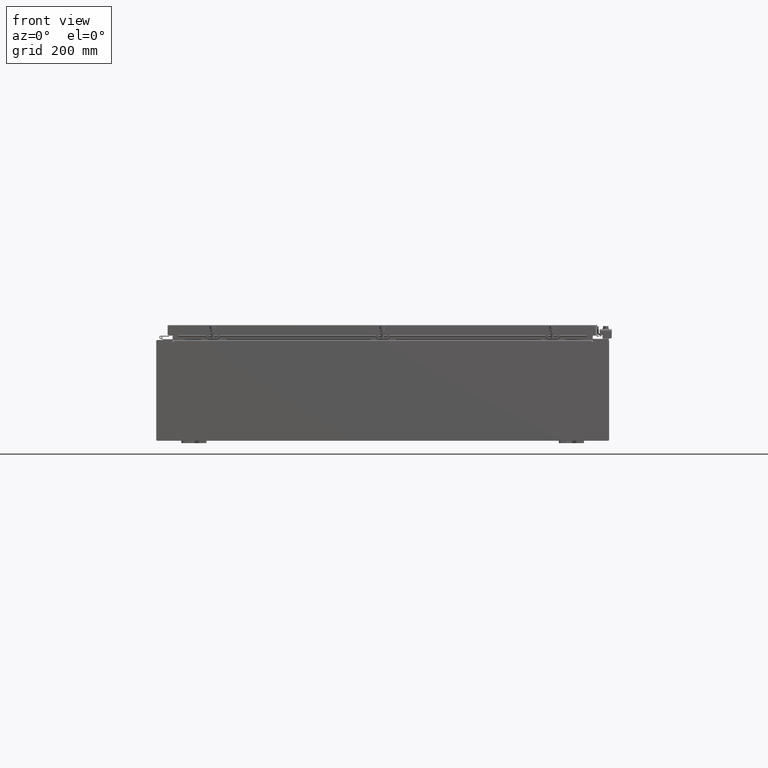
[diagram: clean part render]
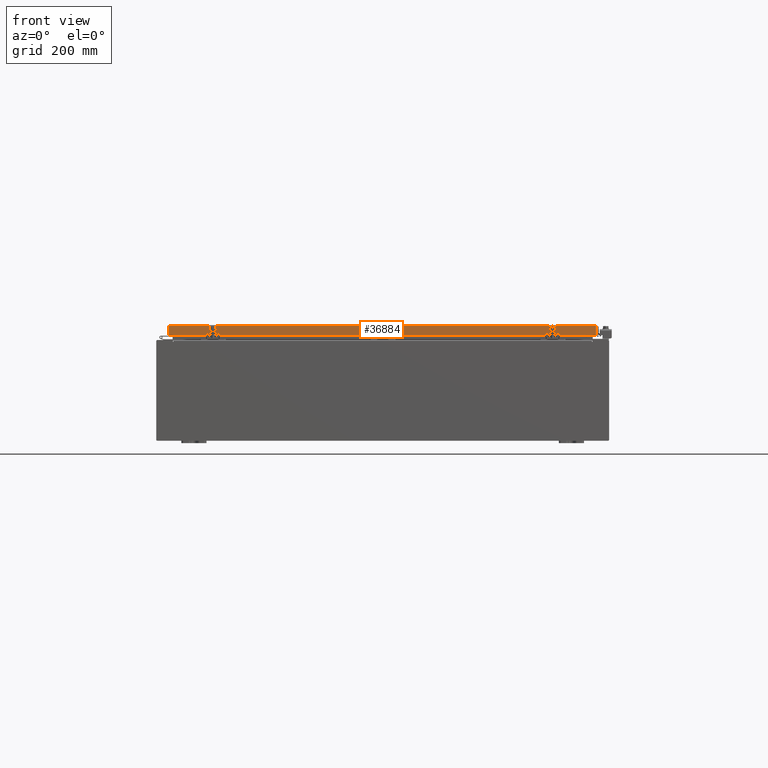
[diagram: same view with one face highlighted and labeled with its STEP entity id]
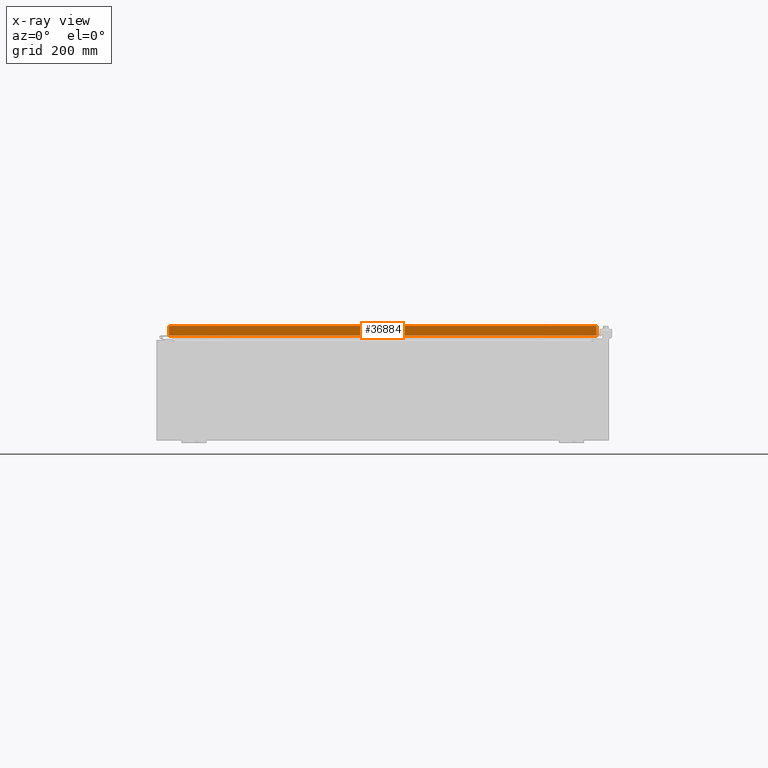
[diagram: x-ray of the same camera — body ghosted, the highlighted face saturated]
A machine part, front view. The second image highlights one B-rep face of the part: STEP entity #36884.
The next image is the same camera in x-ray: the body ghosted, the highlighted face saturated — about 0% of this face is hidden behind the body in this view.
In plain terms, the highlighted planar face has unit normal (-0, 1, -0).
Its self-contained STEP definition (entity closure, byte-faithful):
#122 = DIRECTION ( 'NONE',  ( -1.000000000000000000, -8.758115402030108600E-047, 1.239713195391617400E-016 ) ) ;
#279 = CARTESIAN_POINT ( 'NONE',  ( 17.07799999999999900, -20.09400000000000800, -0.8499999999999996400 ) ) ;
#361 = VECTOR ( 'NONE', #49116, 39.37007874015748100 ) ;
#620 = VECTOR ( 'NONE', #41236, 39.37007874015748100 ) ;
#3665 = DIRECTION ( 'NONE',  ( 1.000000000000000000, 6.989207801985715800E-031, -3.922586267643549700E-045 ) ) ;
#6242 = EDGE_CURVE ( 'NONE', #42329, #7847, #9932, .T. ) ;
#6309 = VECTOR ( 'NONE', #8754, 39.37007874015748100 ) ;
#6394 = ORIENTED_EDGE ( 'NONE', *, *, #31065, .F. ) ;
#6592 = CARTESIAN_POINT ( 'NONE',  ( -16.98915786437626700, -20.09400000000000800, -0.8499999999999954300 ) ) ;
#7375 = ORIENTED_EDGE ( 'NONE', *, *, #7586, .F. ) ;
#7586 = EDGE_CURVE ( 'NONE', #43197, #13793, #21107, .T. ) ;
#7847 = VERTEX_POINT ( 'NONE', #13790 ) ;
#8754 = DIRECTION ( 'NONE',  ( -1.000000000000000000, -8.758115402030108600E-047, 1.239713195391617400E-016 ) ) ;
#9302 = CARTESIAN_POINT ( 'NONE',  ( 16.98915786437626700, -20.09400000000000100, -0.08769999999999549000 ) ) ;
#9932 = LINE ( 'NONE', #24156, #27822 ) ;
#10914 = CARTESIAN_POINT ( 'NONE',  ( -16.98915786437626700, -20.09400000000000100, 1.135460009841472000E-013 ) ) ;
#13790 = CARTESIAN_POINT ( 'NONE',  ( 16.98915786437627100, -20.09400000000000800, -0.8499999999999996400 ) ) ;
#13793 = VERTEX_POINT ( 'NONE', #6592 ) ;
#15596 = ORIENTED_EDGE ( 'NONE', *, *, #6242, .F. ) ;
#16416 = CARTESIAN_POINT ( 'NONE',  ( -16.23915786437626700, -20.09400000000000800, -0.8500000000000016400 ) ) ;
#17517 = EDGE_CURVE ( 'NONE', #20373, #13793, #30821, .T. ) ;
#17932 = DIRECTION ( 'NONE',  ( 0.0000000000000000000, 5.637761885544720300E-015, 1.000000000000000000 ) ) ;
#18583 = FACE_OUTER_BOUND ( 'NONE', #41543, .T. ) ;
#20155 = EDGE_CURVE ( 'NONE', #39330, #43197, #20906, .T. ) ;
#20373 = VERTEX_POINT ( 'NONE', #44174 ) ;
#20906 = LINE ( 'NONE', #41408, #620 ) ;
#21107 = LINE ( 'NONE', #279, #30066 ) ;
#22588 = LINE ( 'NONE', #34224, #41758 ) ;
#24156 = CARTESIAN_POINT ( 'NONE',  ( 16.98915786437627100, -20.09400000000000100, -0.07469999999999958600 ) ) ;
#27762 = CARTESIAN_POINT ( 'NONE',  ( 17.07799999999999900, -20.09400000000000800, -0.8499999999999996400 ) ) ;
#27822 = VECTOR ( 'NONE', #40698, 39.37007874015748100 ) ;
#29262 = CARTESIAN_POINT ( 'NONE',  ( 1.404411415731009600E-029, -20.09400000000000100, 1.135460009841472000E-013 ) ) ;
#29366 = ORIENTED_EDGE ( 'NONE', *, *, #17517, .T. ) ;
#30066 = VECTOR ( 'NONE', #122, 39.37007874015748100 ) ;
#30821 = LINE ( 'NONE', #10914, #361 ) ;
#31065 = EDGE_CURVE ( 'NONE', #20373, #42329, #22588, .T. ) ;
#32992 = CARTESIAN_POINT ( 'NONE',  ( 16.23915786437626400, -20.09400000000000800, -0.8500000000000016400 ) ) ;
#34224 = CARTESIAN_POINT ( 'NONE',  ( 17.07799999999999900, -20.09400000000000100, -0.08769999999999547600 ) ) ;
#36765 = LINE ( 'NONE', #27762, #6309 ) ;
#36884 = ADVANCED_FACE ( 'NONE', ( #18583 ), #36993, .F. ) ;
#36993 = PLANE ( 'NONE',  #42408 ) ;
#39330 = VERTEX_POINT ( 'NONE', #32992 ) ;
#40698 = DIRECTION ( 'NONE',  ( -0.0000000000000000000, -5.637761885544720300E-015, -1.000000000000000000 ) ) ;
#40844 = DIRECTION ( 'NONE',  ( -6.989207801985715000E-031, 1.000000000000000000, -5.637761885544720300E-015 ) ) ;
#41033 = EDGE_CURVE ( 'NONE', #7847, #39330, #36765, .T. ) ;
#41236 = DIRECTION ( 'NONE',  ( -1.000000000000000000, 0.0000000000000000000, 0.0000000000000000000 ) ) ;
#41408 = CARTESIAN_POINT ( 'NONE',  ( 16.23915786437626700, -20.09400000000000800, -0.8500000000000016400 ) ) ;
#41543 = EDGE_LOOP ( 'NONE', ( #6394, #29366, #7375, #47579, #49176, #15596 ) ) ;
#41758 = VECTOR ( 'NONE', #3665, 39.37007874015748100 ) ;
#42329 = VERTEX_POINT ( 'NONE', #9302 ) ;
#42408 = AXIS2_PLACEMENT_3D ( 'NONE', #29262, #40844, #17932 ) ;
#43197 = VERTEX_POINT ( 'NONE', #16416 ) ;
#44174 = CARTESIAN_POINT ( 'NONE',  ( -16.98915786437626700, -20.09400000000000100, -0.08769999999999547600 ) ) ;
#47579 = ORIENTED_EDGE ( 'NONE', *, *, #20155, .F. ) ;
#49116 = DIRECTION ( 'NONE',  ( 0.0000000000000000000, -5.637761885544720300E-015, -1.000000000000000000 ) ) ;
#49176 = ORIENTED_EDGE ( 'NONE', *, *, #41033, .F. ) ;